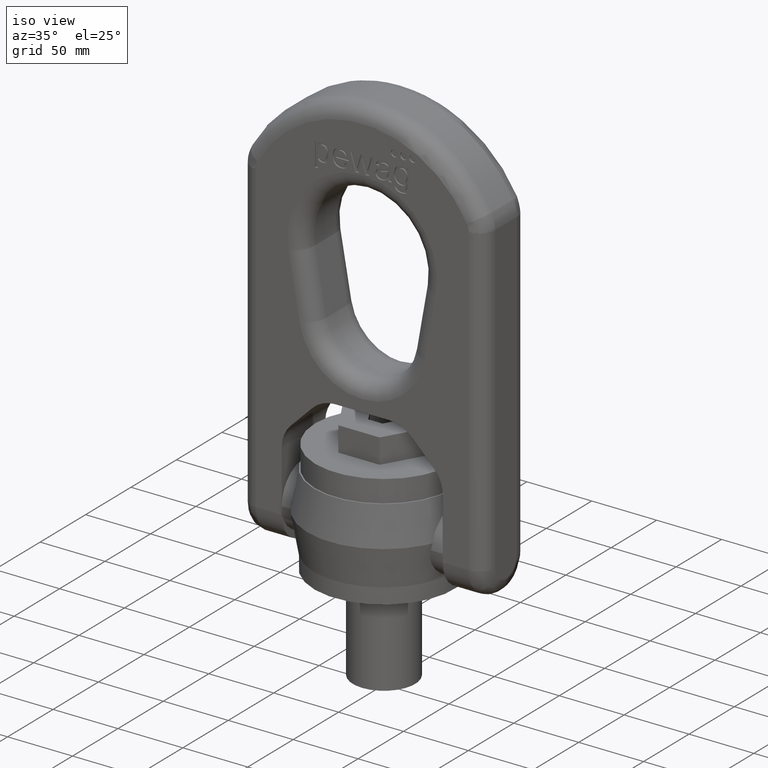
[diagram: clean part render]
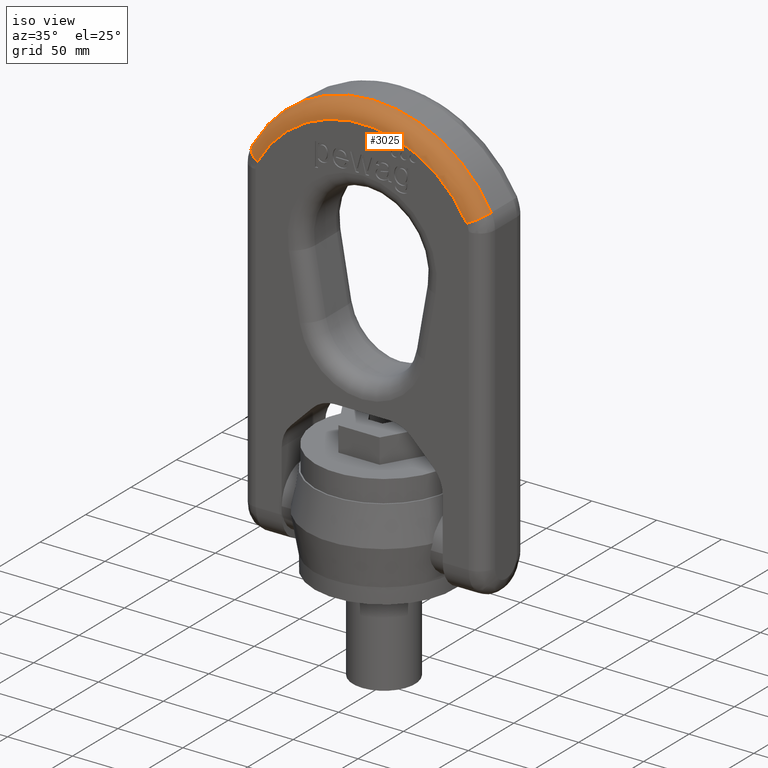
[diagram: same view with one face highlighted and labeled with its STEP entity id]
A machine part, iso view. The second image highlights one B-rep face of the part: STEP entity #3025.
In plain terms, the highlighted toroidal blend (fillet) surface has major radius 91.6333 mm and minor (blend) radius 12 mm.
Its self-contained STEP definition (entity closure, byte-faithful):
#201=TOROIDAL_SURFACE('',#6039,91.6333333333333,12.);
#2650=FACE_OUTER_BOUND('',#3418,.T.);
#3025=ADVANCED_FACE('',(#2650),#201,.T.);
#3418=EDGE_LOOP('',(#4637,#4638,#4639,#4640));
#4637=ORIENTED_EDGE('',*,*,#5733,.F.);
#4638=ORIENTED_EDGE('',*,*,#5182,.F.);
#4639=ORIENTED_EDGE('',*,*,#5735,.T.);
#4640=ORIENTED_EDGE('',*,*,#5371,.F.);
#4748=VERTEX_POINT('',#7080);
#4749=VERTEX_POINT('',#7082);
#4927=VERTEX_POINT('',#7761);
#4930=VERTEX_POINT('',#7766);
#5182=EDGE_CURVE('',#4748,#4749,#5766,.T.);
#5371=EDGE_CURVE('',#4930,#4927,#5792,.T.);
#5733=EDGE_CURVE('',#4749,#4930,#5811,.T.);
#5735=EDGE_CURVE('',#4748,#4927,#5813,.T.);
#5766=CIRCLE('',#5872,91.6333333333333);
#5792=CIRCLE('',#5905,103.633333333333);
#5811=CIRCLE('',#6036,12.);
#5813=CIRCLE('',#6038,12.);
#5872=AXIS2_PLACEMENT_3D('',#7081,#6202,#6203);
#5905=AXIS2_PLACEMENT_3D('',#7767,#6363,#6364);
#6036=AXIS2_PLACEMENT_3D('',#9737,#6880,#6881);
#6038=AXIS2_PLACEMENT_3D('',#9771,#6884,#6885);
#6039=AXIS2_PLACEMENT_3D('',#9772,#6886,#6887);
#6202=DIRECTION('',(0.,-1.,0.));
#6203=DIRECTION('',(0.,0.,-1.));
#6363=DIRECTION('',(0.,1.,0.));
#6364=DIRECTION('',(0.,0.,-1.));
#6880=DIRECTION('',(-0.476768522394306,0.,-0.879028882377565));
#6881=DIRECTION('',(0.879028882377565,0.,-0.476768522394306));
#6884=DIRECTION('',(-0.476768522394306,5.51374365602785E-16,0.879028882377564));
#6885=DIRECTION('',(-0.879028882377565,0.,-0.476768522394306));
#6886=DIRECTION('',(0.,-1.,0.));
#6887=DIRECTION('',(0.,0.,-1.));
#7080=CARTESIAN_POINT('',(80.5483465885308,-24.,271.054555602065));
#7081=CARTESIAN_POINT('',(0.,-24.,227.366666666667));
#7082=CARTESIAN_POINT('',(-80.5483465885308,-24.,271.054555602065));
#7761=CARTESIAN_POINT('',(91.0966931770616,-12.,276.775777870797));
#7766=CARTESIAN_POINT('',(-91.0966931770616,-12.,276.775777870797));
#7767=CARTESIAN_POINT('',(0.,-12.,227.366666666667));
#9737=CARTESIAN_POINT('',(-80.5483465885308,-12.,271.054555602065));
#9771=CARTESIAN_POINT('',(80.5483465885308,-12.,271.054555602065));
#9772=CARTESIAN_POINT('',(0.,-12.,227.366666666667));